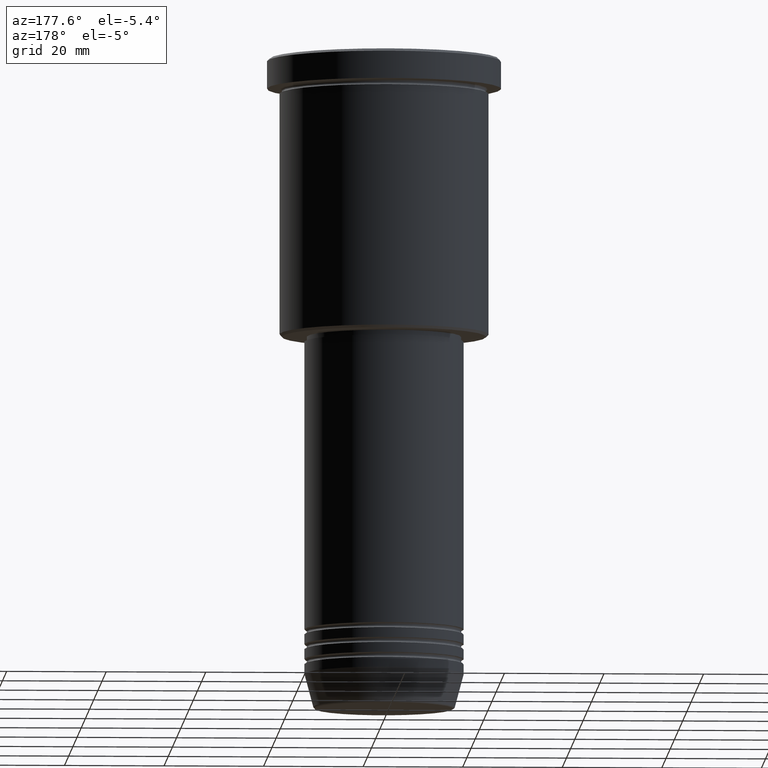
[diagram: clean part render]
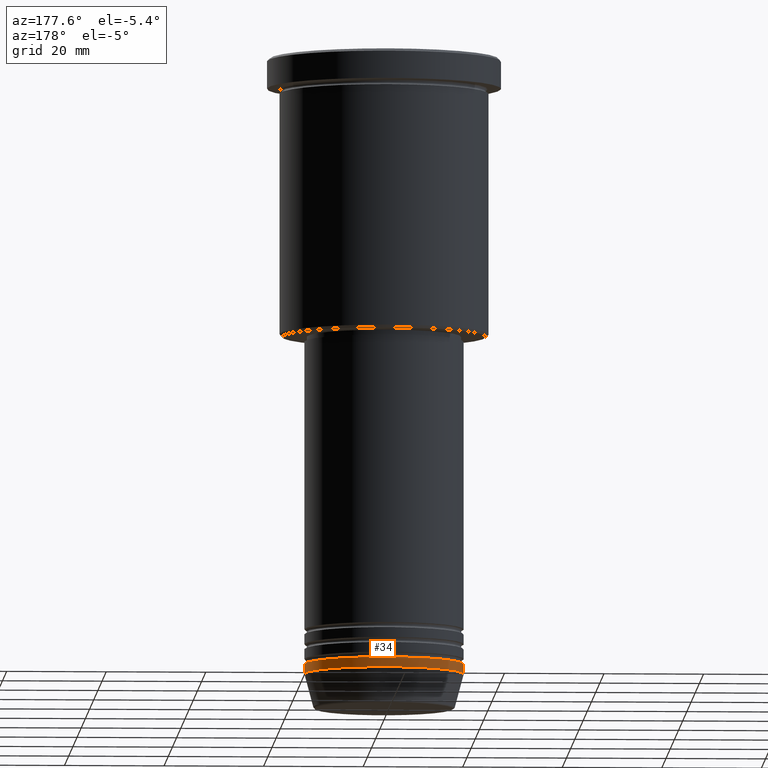
[diagram: same view with one face highlighted and labeled with its STEP entity id]
A machine part, auxiliary view. The second image highlights one B-rep face of the part: STEP entity #34.
In plain terms, the highlighted cylindrical surface (partial cylindrical patch) has radius 16 mm, axis along (-0, -0, 1).
Its self-contained STEP definition (entity closure, byte-faithful):
#34 = ADVANCED_FACE ( 'NONE', ( #397 ), #758, .T. ) ;
#117 = DIRECTION ( 'NONE',  ( 1.000000000000000000, 0.000000000000000000, 0.000000000000000000 ) ) ;
#121 = VERTEX_POINT ( 'NONE', #1014 ) ;
#163 = CARTESIAN_POINT ( 'NONE',  ( 0.000000000000000000, 0.000000000000000000, -122.0000000000000000 ) ) ;
#258 = LINE ( 'NONE', #452, #378 ) ;
#273 = VECTOR ( 'NONE', #427, 1000.000000000000000 ) ;
#316 = CARTESIAN_POINT ( 'NONE',  ( -16.00000000000000000, 1.959434878635765131E-15, 0.000000000000000000 ) ) ;
#365 = CIRCLE ( 'NONE', #522, 16.00000000000000000 ) ;
#378 = VECTOR ( 'NONE', #815, 1000.000000000000000 ) ;
#386 = DIRECTION ( 'NONE',  ( -0.000000000000000000, -0.000000000000000000, 1.000000000000000000 ) ) ;
#388 = VERTEX_POINT ( 'NONE', #987 ) ;
#397 = FACE_OUTER_BOUND ( 'NONE', #1019, .T. ) ;
#427 = DIRECTION ( 'NONE',  ( -0.000000000000000000, -0.000000000000000000, 1.000000000000000000 ) ) ;
#452 = CARTESIAN_POINT ( 'NONE',  ( 16.00000000000000000, 0.000000000000000000, 0.000000000000000000 ) ) ;
#515 = CARTESIAN_POINT ( 'NONE',  ( -16.00000000000000000, 1.959434878635765131E-15, -124.0000000000000000 ) ) ;
#522 = AXIS2_PLACEMENT_3D ( 'NONE', #768, #386, #117 ) ;
#545 = DIRECTION ( 'NONE',  ( 1.000000000000000000, 0.000000000000000000, 0.000000000000000000 ) ) ;
#572 = AXIS2_PLACEMENT_3D ( 'NONE', #163, #631, #545 ) ;
#584 = CARTESIAN_POINT ( 'NONE',  ( 0.000000000000000000, 0.000000000000000000, 0.000000000000000000 ) ) ;
#631 = DIRECTION ( 'NONE',  ( -0.000000000000000000, -0.000000000000000000, 1.000000000000000000 ) ) ;
#715 = EDGE_CURVE ( 'NONE', #792, #121, #1132, .T. ) ;
#758 = CYLINDRICAL_SURFACE ( 'NONE', #906, 16.00000000000000000 ) ;
#768 = CARTESIAN_POINT ( 'NONE',  ( 0.000000000000000000, 0.000000000000000000, -124.0000000000000000 ) ) ;
#792 = VERTEX_POINT ( 'NONE', #515 ) ;
#815 = DIRECTION ( 'NONE',  ( -0.000000000000000000, -0.000000000000000000, 1.000000000000000000 ) ) ;
#839 = CIRCLE ( 'NONE', #572, 16.00000000000000000 ) ;
#885 = EDGE_CURVE ( 'NONE', #388, #121, #839, .T. ) ;
#906 = AXIS2_PLACEMENT_3D ( 'NONE', #584, #1122, #943 ) ;
#943 = DIRECTION ( 'NONE',  ( 1.000000000000000000, 0.000000000000000000, 0.000000000000000000 ) ) ;
#948 = CARTESIAN_POINT ( 'NONE',  ( 16.00000000000000000, 0.000000000000000000, -124.0000000000000000 ) ) ;
#954 = ORIENTED_EDGE ( 'NONE', *, *, #991, .F. ) ;
#987 = CARTESIAN_POINT ( 'NONE',  ( 16.00000000000000000, 0.000000000000000000, -122.0000000000000000 ) ) ;
#991 = EDGE_CURVE ( 'NONE', #1047, #388, #258, .T. ) ;
#1014 = CARTESIAN_POINT ( 'NONE',  ( -16.00000000000000000, 1.959434878635765131E-15, -122.0000000000000000 ) ) ;
#1019 = EDGE_LOOP ( 'NONE', ( #1021, #1049, #1162, #954 ) ) ;
#1021 = ORIENTED_EDGE ( 'NONE', *, *, #1167, .T. ) ;
#1047 = VERTEX_POINT ( 'NONE', #948 ) ;
#1049 = ORIENTED_EDGE ( 'NONE', *, *, #715, .T. ) ;
#1122 = DIRECTION ( 'NONE',  ( -0.000000000000000000, -0.000000000000000000, 1.000000000000000000 ) ) ;
#1132 = LINE ( 'NONE', #316, #273 ) ;
#1162 = ORIENTED_EDGE ( 'NONE', *, *, #885, .F. ) ;
#1167 = EDGE_CURVE ( 'NONE', #1047, #792, #365, .T. ) ;